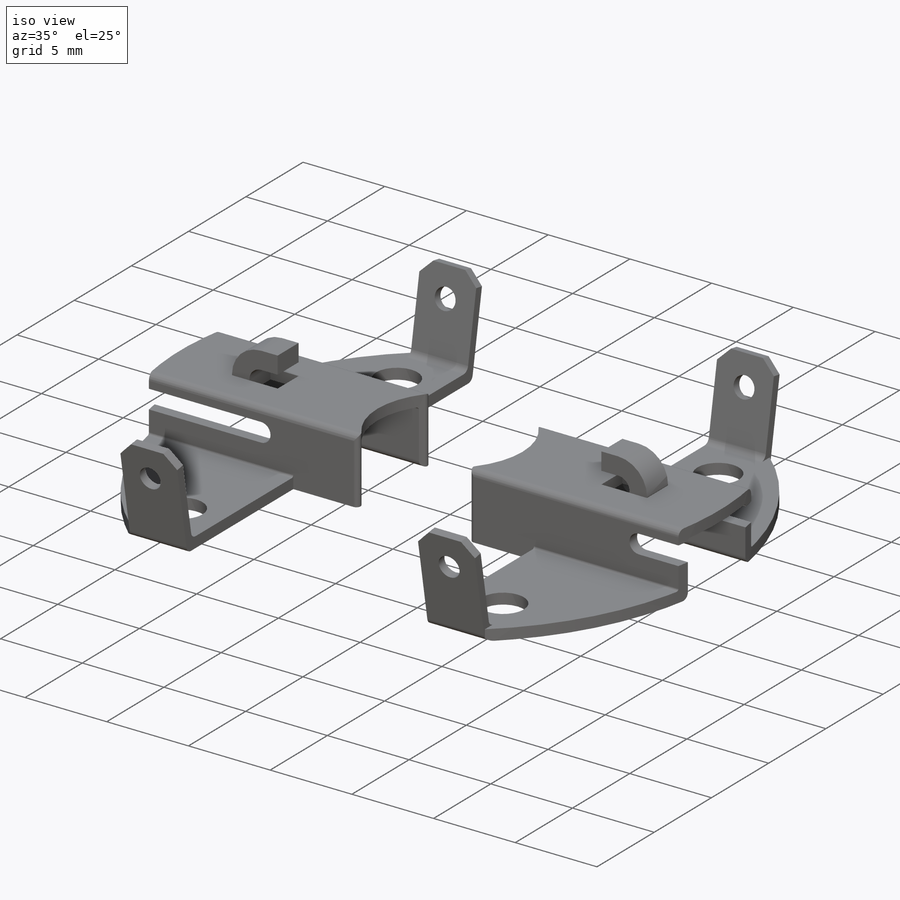
[diagram: iso view]
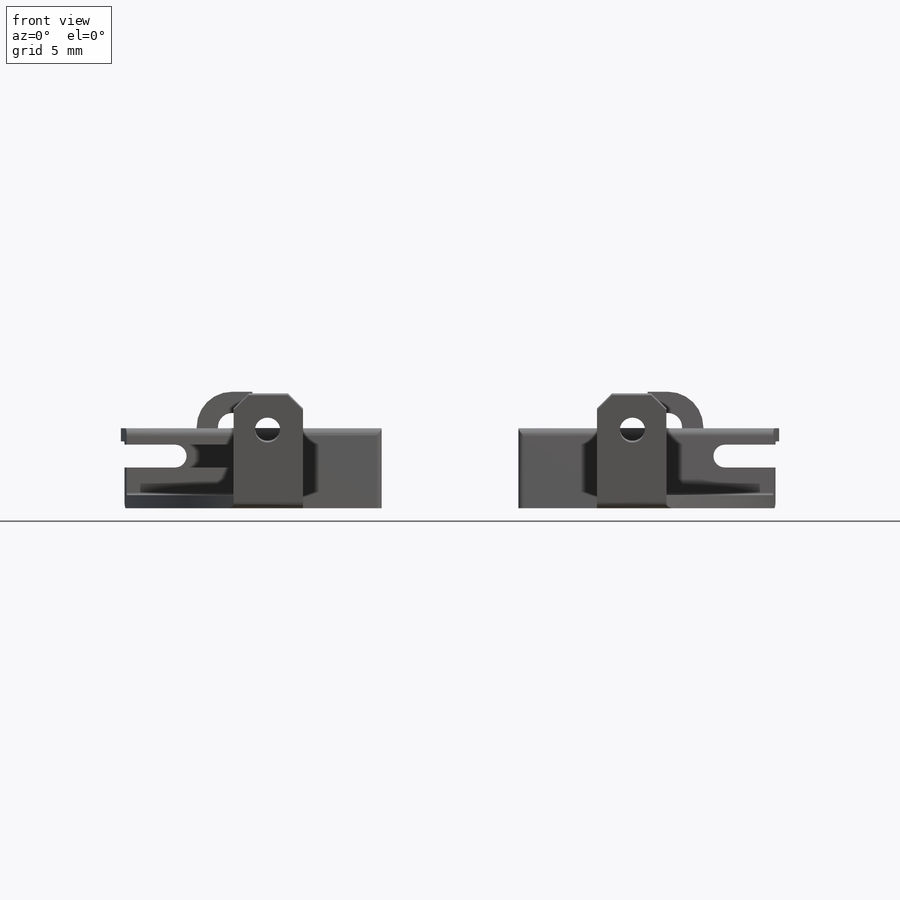
[diagram: front view]
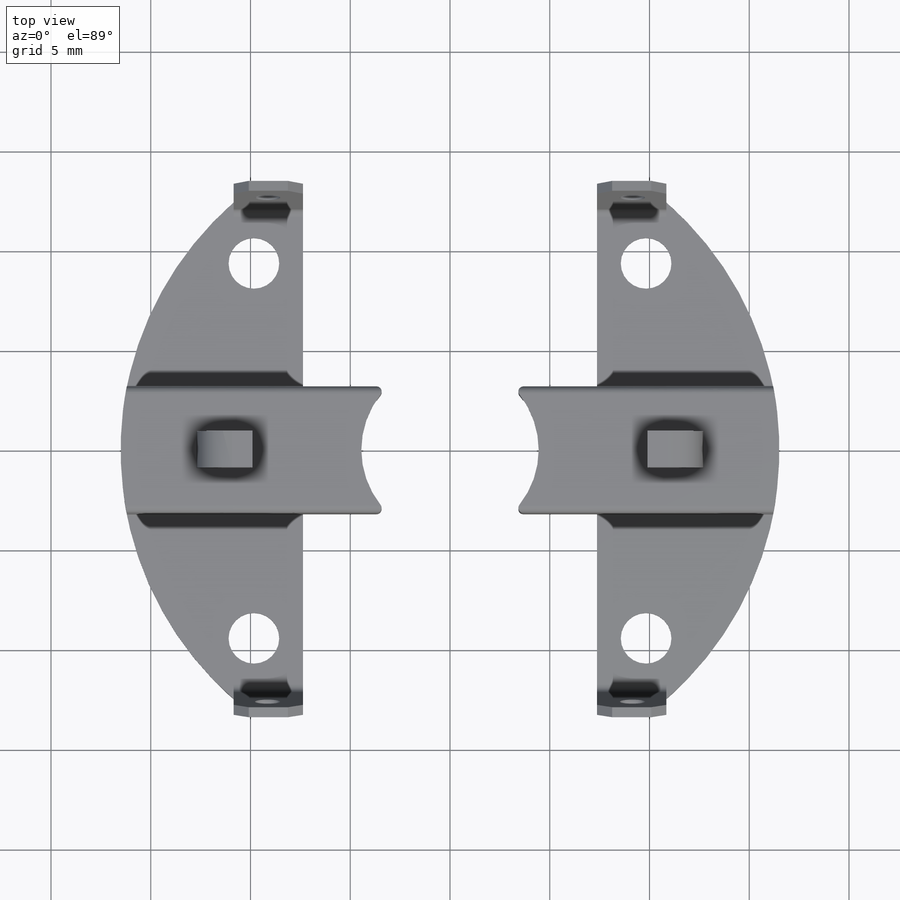
[diagram: top view]
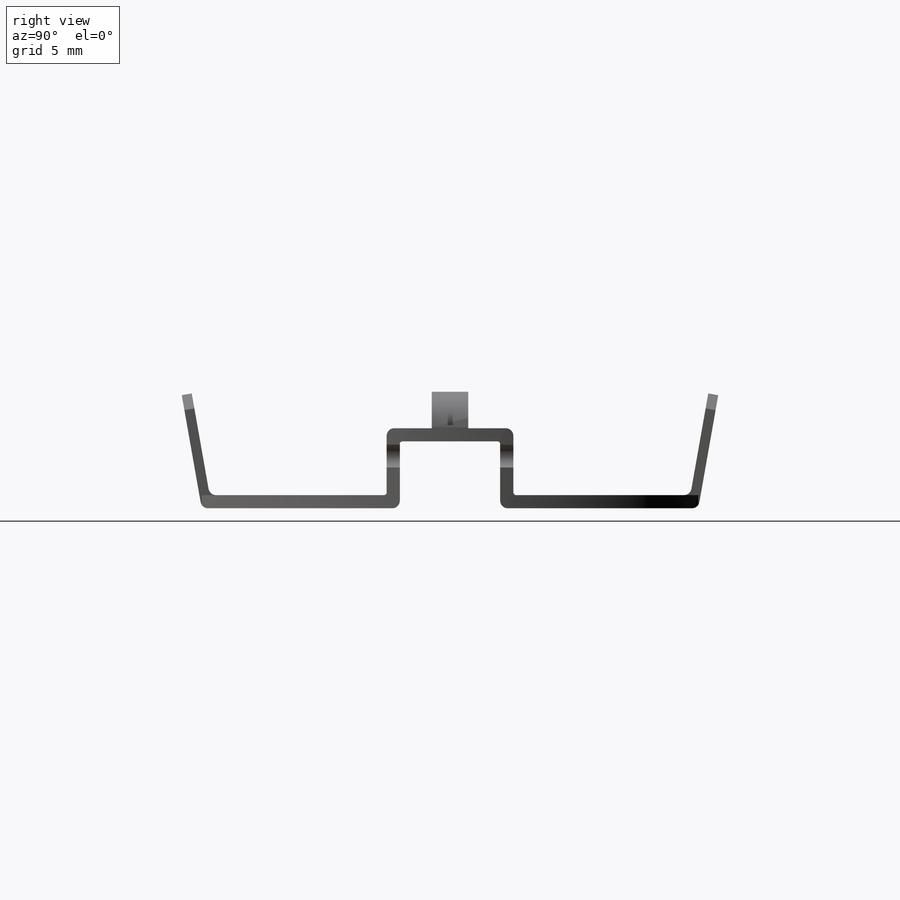
[diagram: right view]
SOLIDWORKS PART (.sldprt)
format: sldprt  version: not decoded by parser v0  size: 638,976 bytes
history: native  units: mm
features: sketch x13, cut_extrude x7, extrude x4, plane x2, chamfer x2, fillet x2, material x1 (+11 scaffold rows collapsed)
feature tree (42):
  scaffold x11  (default folders/planes/origin — collapsed)
  material  "Material <not specified>"
  sketch  "Sketch1"  dims[D1=33.02mm D4=2.54mm D7=8.89mm D9=0.254mm D2=7.366mm D3=12.446mm D5=9.398mm D6=9.8298mm D8=6.35mm]
  extrude  "Boss-Extrude1"  Depth=4.0132mm
  sketch  "Sketch2"  dims[c1.D7=0.127mm c1.D8=0.381mm c1.D3=0.254mm c1.D5=0.508mm c2.D3=0.381mm c2.D5=0.127mm c2.D2=3.175mm c3.D3=0.6604mm c3.D4=0.6604mm c3.D5=0.6604mm c3.D6=0.6604mm c3.D1=0.0mm c3.D2=0.6604mm]
  cut_extrude  "Cut-Extrude1"  [1 undecoded]
  sketch  "Sketch4"  dims[c1.D1=1.143mm c1.D2=1.397mm c1.D3=6.985mm c1.D4=1.143mm c1.D5=2.54mm c1.D6=1.397mm c2.D2=1.397mm]
  cut_extrude  "Cut-Extrude2"  Depth=4.826mm
  sketch  "Sketch5"  dims[c1.D1=~28.923685mm c1.D2=6.985mm c1.D3=~7.428557mm c1.D4=1.397mm c2.D1=1.397mm c2.D2=6.985mm c2.D3=1.143mm c2.D4=2.54mm c3.D1=1.397mm]
  cut_extrude  "Cut-Extrude3"  Depth=4.826mm
  sketch  "Sketch6"  dims[D1=3.81mm D2=0.9144mm D3=2.794mm]
  extrude  "Boss-Extrude2"  Depth=1.8288mm
  sketch  "Sketch7"  dims[D1=1.778mm D2=0.6604mm]
  cut_extrude  "Cut-Extrude4"  Depth=1.8288mm
  sketch  "Sketch9"
  cut_extrude  "Cut-Extrude7"  [1 undecoded]
  plane  "Plane1"  Offset=7.62mm
  sketch  "Sketch10"  dims[c1.D1=5.3106mm c2.D1=100.0deg c2.D2=0.508mm]
  extrude  "Boss-Extrude3"  [1 undecoded]
  sketch  "Sketch11"
  plane  "Plane3"
  sketch  "Sketch12"
  extrude  "Boss-Extrude4"  [1 undecoded]
  chamfer  "Chamfer1"  Distance=0.762mm Angle=45deg
  chamfer  "Chamfer2"  Distance=0.762mm Angle=45deg
  fillet  "Fillet1"  Radius=0.381mm
  fillet  "Fillet2"  Radius=0.381mm
  sketch  "Sketch13"  dims[c1.D1=1.27mm c1.D2=1.778mm c1.D3=~2.270453mm c2.D3=90.0deg c3.D3=1.778mm]
  sketch  "Sketch14"
  cut_extrude  "Cut-Extrude8"  Depth=3.175mm
  sketch  "Sketch15"  dims[D1=1.27mm D2=1.778mm D3=1.778mm]
  cut_extrude  "Cut-Extrude9"  Depth=3.175mm
decode coverage: 20 of 28 modeling features carry decoded parameters
note: ~ marks probable driven/reference dimensions
note: 4 parameter values undecoded
summary: no parameter record found for 4 features
note: suppression state not decoded; provenance and decode notes live in map.json
